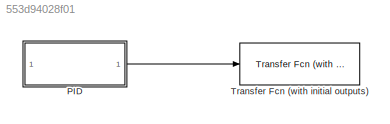
MODEL slx_553d94028f01
KIND model
CONFIG AbsTol = auto
CONFIG EnableMultiTasking = off
CONFIG FixedStep = auto
CONFIG MaxStep = auto
CONFIG MinStep = auto
CONFIG RelTol = 1e-3
CONFIG SampleTimeConstraint = Unconstrained
CONFIG SolverName = VariableStepAuto
CONFIG StartTime = 0.0
CONFIG StopTime = 10.0
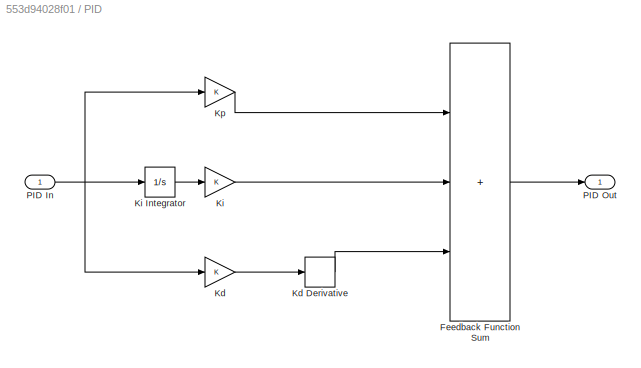
BLOCK [SubSystem] PID
BLOCK [Sum] PID/Feedback Function Sum
  IconShape = rectangular
  Inputs = +++
BLOCK [Gain] PID/Kd
BLOCK [Derivative] PID/Kd Derivative
BLOCK [Gain] PID/Ki
BLOCK [Integrator] PID/Ki Integrator
BLOCK [Gain] PID/Kp
BLOCK [Inport] PID/PID In
BLOCK [Outport] PID/PID Out
BLOCK [Reference] Transfer Fcn (with initial outputs)  REF=simulink_extras/Additional
Linear/Transfer Fcn
(with initial outputs)
  SourceBlock = simulink_extras/Additional\nLinear/Transfer Fcn\n(with initial outputs)
  SourceType = Transfer Function with Initial Outputs
LINE PID/Feedback Function Sum:1 -> PID/PID Out:1
LINE PID/Kd Derivative:1 -> PID/Feedback Function Sum:3
LINE PID/Kd:1 -> PID/Kd Derivative:1
LINE PID/Ki Integrator:1 -> PID/Ki:1
LINE PID/Ki:1 -> PID/Feedback Function Sum:2
LINE PID/Kp:1 -> PID/Feedback Function Sum:1
NET PID/PID In:1 -> PID/Kd:1, PID/Ki Integrator:1, PID/Kp:1
LINE PID:1 -> Transfer Fcn (with initial outputs):1
note: NET lines group one-source signal fan-out (src -> all destinations, sorted); 1:1 wires keep LINE
